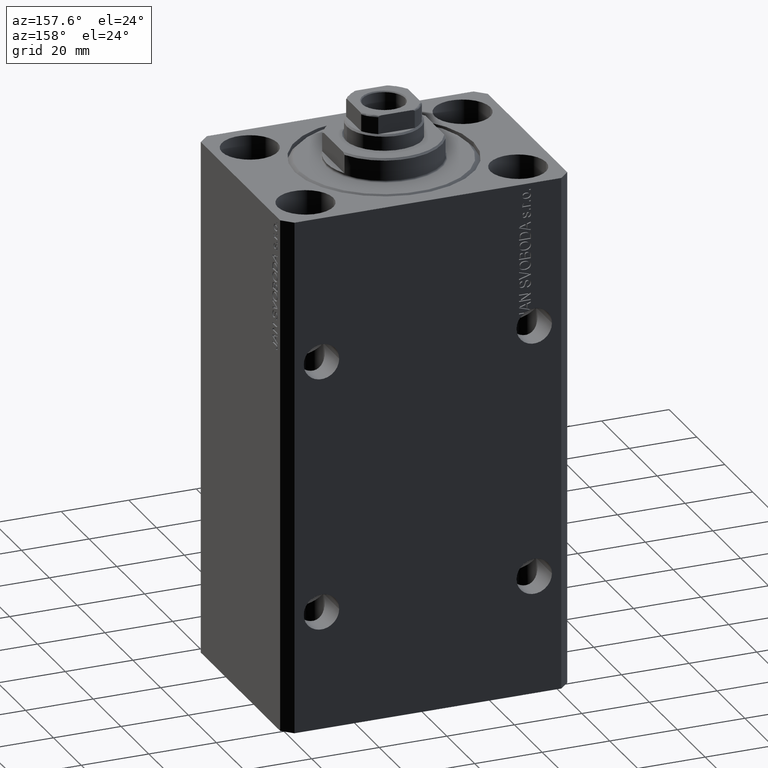
[diagram: clean part render]
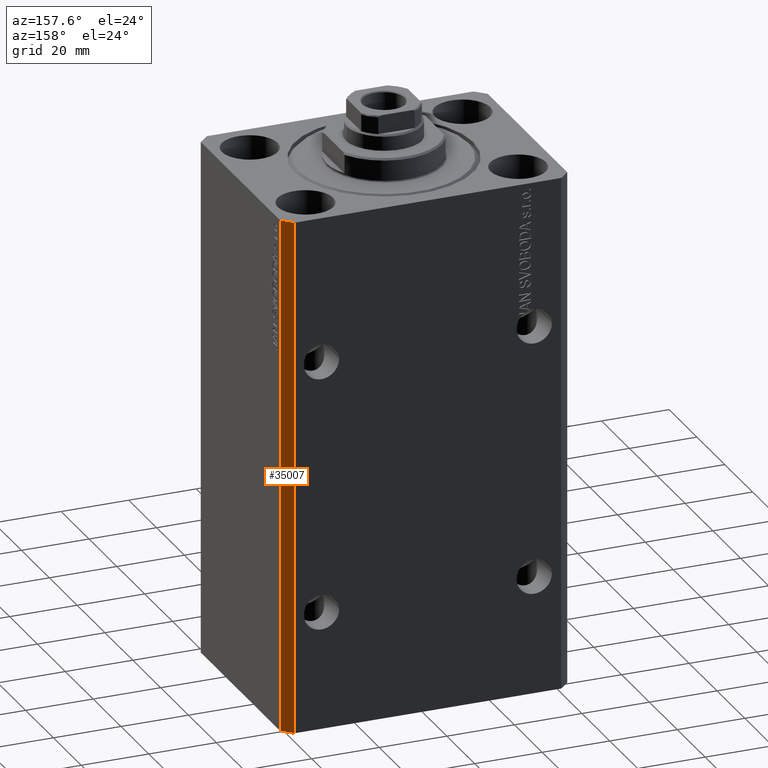
[diagram: same view with one face highlighted and labeled with its STEP entity id]
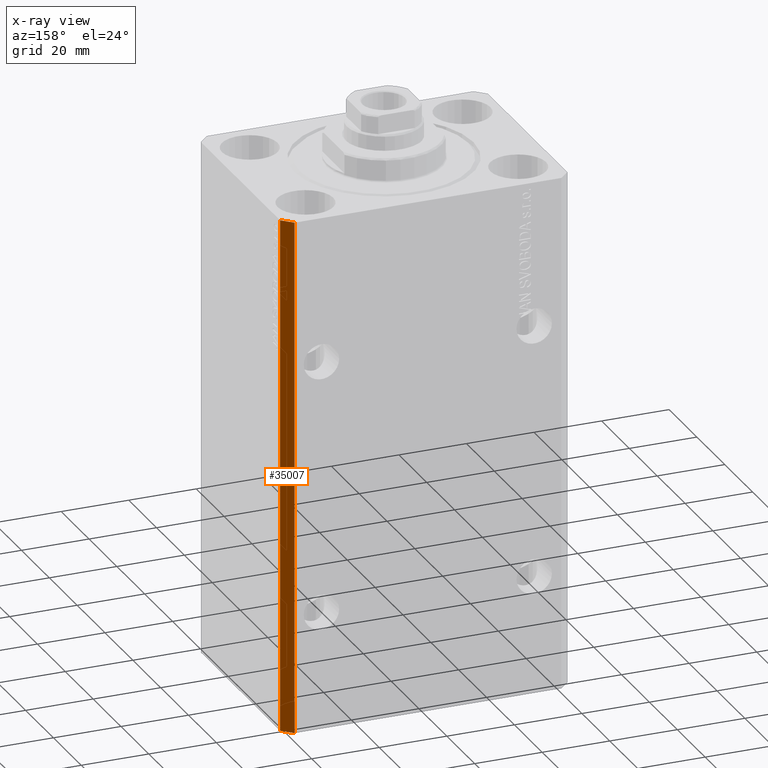
[diagram: x-ray of the same camera — body ghosted, the highlighted face saturated]
A machine part, auxiliary view. The second image highlights one B-rep face of the part: STEP entity #35007.
The next image is the same camera in x-ray: the body ghosted, the highlighted face saturated — about 0% of this face is hidden behind the body in this view.
In plain terms, the highlighted planar face has unit normal (0.7071, 0.7071, 0).
Its self-contained STEP definition (entity closure, byte-faithful):
#68 = CARTESIAN_POINT ( 'NONE',  ( 39.50000000000056843, 31.50000000000000000, -153.0000000000000000 ) ) ;
#496 = AXIS2_PLACEMENT_3D ( 'NONE', #8733, #11506, #14725 ) ;
#1008 = ORIENTED_EDGE ( 'NONE', *, *, #9777, .F. ) ;
#2655 = VECTOR ( 'NONE', #42516, 1000.000000000000114 ) ;
#3381 = LINE ( 'NONE', #24910, #41833 ) ;
#4661 = LINE ( 'NONE', #18404, #2655 ) ;
#7717 = DIRECTION ( 'NONE',  ( 0.000000000000000000, 0.000000000000000000, 1.000000000000000000 ) ) ;
#7910 = DIRECTION ( 'NONE',  ( -0.7071067811865356934, 0.7071067811865594521, 0.000000000000000000 ) ) ;
#8733 = CARTESIAN_POINT ( 'NONE',  ( 42.50000000000051870, 28.49999999999995381, -153.0000000000000000 ) ) ;
#9777 = EDGE_CURVE ( 'NONE', #18296, #43858, #3381, .T. ) ;
#11506 = DIRECTION ( 'NONE',  ( 0.7071067811865594521, 0.7071067811865356934, -0.000000000000000000 ) ) ;
#14725 = DIRECTION ( 'NONE',  ( -0.7071067811865356934, 0.7071067811865594521, 0.000000000000000000 ) ) ;
#14955 = FACE_OUTER_BOUND ( 'NONE', #28495, .T. ) ;
#16851 = ORIENTED_EDGE ( 'NONE', *, *, #29516, .T. ) ;
#17458 = VECTOR ( 'NONE', #7910, 1000.000000000000114 ) ;
#17714 = LINE ( 'NONE', #68, #44076 ) ;
#18296 = VERTEX_POINT ( 'NONE', #37342 ) ;
#18404 = CARTESIAN_POINT ( 'NONE',  ( 42.50000000000051870, 28.49999999999995381, -153.0000000000000000 ) ) ;
#18748 = EDGE_CURVE ( 'NONE', #33394, #43810, #17714, .T. ) ;
#19993 = CARTESIAN_POINT ( 'NONE',  ( 39.50000000000056843, 31.50000000000000000, 0.000000000000000000 ) ) ;
#23895 = DIRECTION ( 'NONE',  ( 0.000000000000000000, 0.000000000000000000, 1.000000000000000000 ) ) ;
#24910 = CARTESIAN_POINT ( 'NONE',  ( 42.50000000000051870, 28.49999999999995381, -153.0000000000000000 ) ) ;
#25107 = LINE ( 'NONE', #28550, #17458 ) ;
#28495 = EDGE_LOOP ( 'NONE', ( #39740, #1008, #16851, #37434 ) ) ;
#28550 = CARTESIAN_POINT ( 'NONE',  ( 42.50000000000051870, 28.49999999999995381, 0.000000000000000000 ) ) ;
#29516 = EDGE_CURVE ( 'NONE', #18296, #33394, #4661, .T. ) ;
#30994 = CARTESIAN_POINT ( 'NONE',  ( 42.50000000000051870, 28.49999999999995381, 0.000000000000000000 ) ) ;
#32613 = PLANE ( 'NONE',  #496 ) ;
#33394 = VERTEX_POINT ( 'NONE', #33945 ) ;
#33945 = CARTESIAN_POINT ( 'NONE',  ( 39.50000000000056843, 31.50000000000000000, -153.0000000000000000 ) ) ;
#35007 = ADVANCED_FACE ( 'NONE', ( #14955 ), #32613, .T. ) ;
#37342 = CARTESIAN_POINT ( 'NONE',  ( 42.50000000000051870, 28.49999999999995381, -153.0000000000000000 ) ) ;
#37434 = ORIENTED_EDGE ( 'NONE', *, *, #18748, .T. ) ;
#39604 = EDGE_CURVE ( 'NONE', #43858, #43810, #25107, .T. ) ;
#39740 = ORIENTED_EDGE ( 'NONE', *, *, #39604, .F. ) ;
#41833 = VECTOR ( 'NONE', #7717, 1000.000000000000000 ) ;
#42516 = DIRECTION ( 'NONE',  ( -0.7071067811865356934, 0.7071067811865594521, 0.000000000000000000 ) ) ;
#43810 = VERTEX_POINT ( 'NONE', #19993 ) ;
#43858 = VERTEX_POINT ( 'NONE', #30994 ) ;
#44076 = VECTOR ( 'NONE', #23895, 1000.000000000000000 ) ;